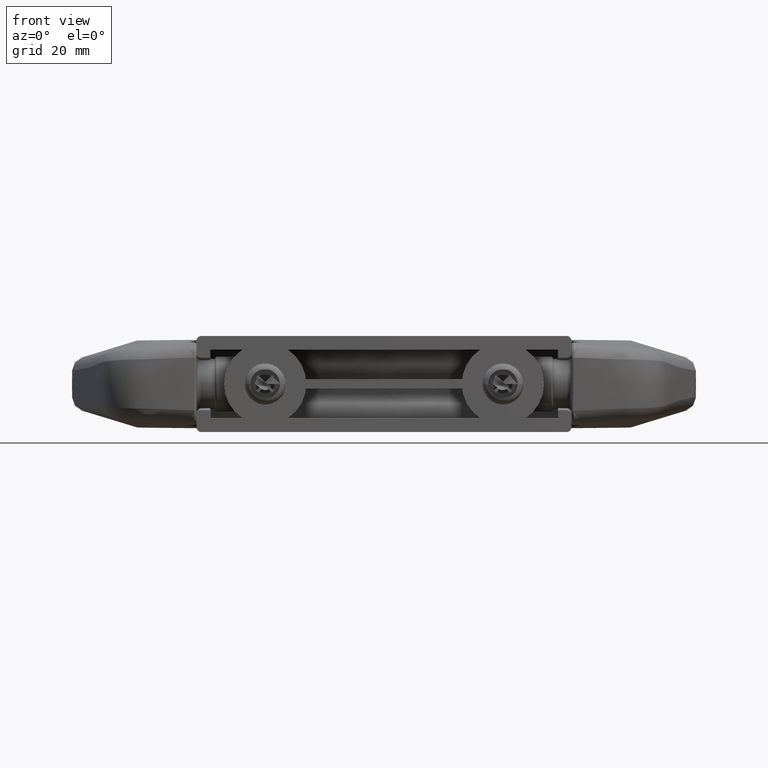
[diagram: clean part render]
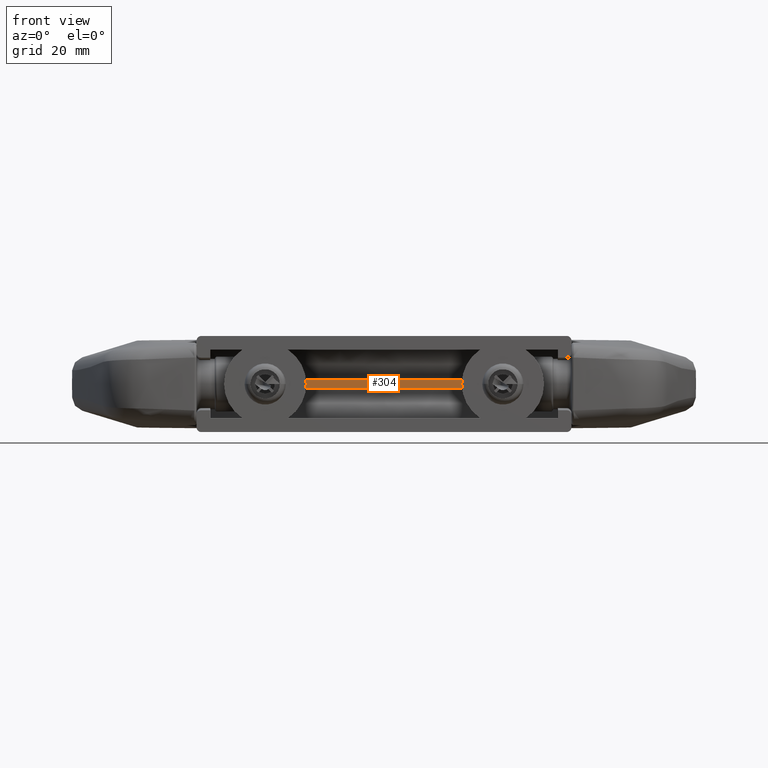
[diagram: same view with one face highlighted and labeled with its STEP entity id]
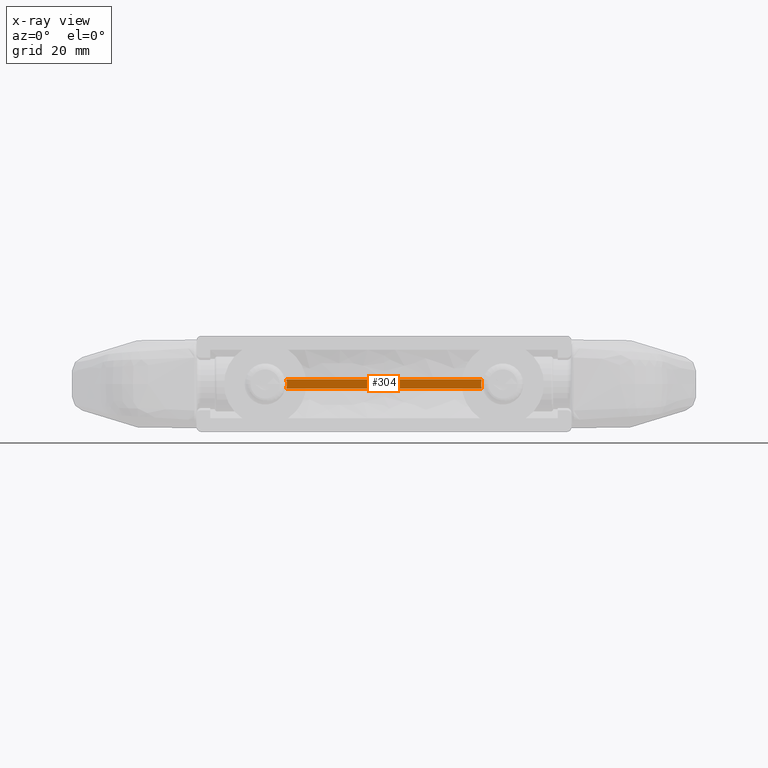
[diagram: x-ray of the same camera — body ghosted, the highlighted face saturated]
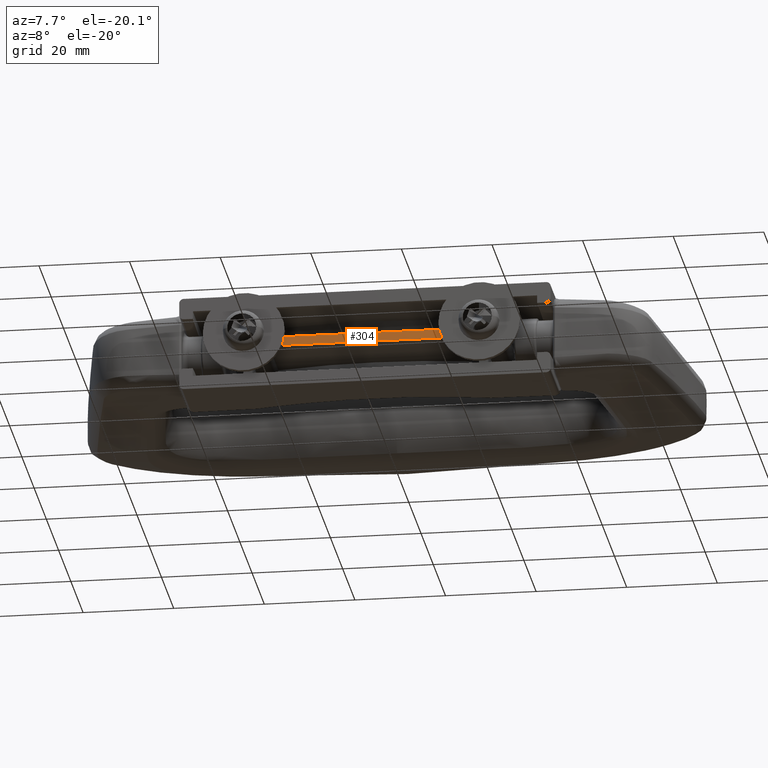
[diagram: same view with one face highlighted and labeled with its STEP entity id]
A machine part, front view. The second image highlights one B-rep face of the part: STEP entity #304.
The next image is the same camera in x-ray: the body ghosted, the highlighted face saturated — about 0% of this face is hidden behind the body in this view.
A second angle (auxiliary view) of the same face is appended — the face is thin or edge-on in the first view.
In plain terms, the highlighted planar face has unit normal (0, 1, 0).
Its self-contained STEP definition (entity closure, byte-faithful):
#157 = DIRECTION ( 'NONE',  ( 0.0000000000000000000, 1.000000000000000000, 0.0000000000000000000 ) ) ;
#196 = CARTESIAN_POINT ( 'NONE',  ( -21.35645609474832400, 0.9999999999763531400, -1.000000000000000000 ) ) ;
#304 = ADVANCED_FACE ( 'NONE', ( #6926 ), #6607, .F. ) ;
#537 = EDGE_LOOP ( 'NONE', ( #6561, #1940, #10078, #13278 ) ) ;
#548 = EDGE_CURVE ( 'NONE', #6629, #7211, #9346, .T. ) ;
#1190 = DIRECTION ( 'NONE',  ( 0.0000000000000000000, 0.0000000000000000000, 1.000000000000000000 ) ) ;
#1338 = DIRECTION ( 'NONE',  ( 1.000000000000000000, 0.0000000000000000000, 0.0000000000000000000 ) ) ;
#1451 = DIRECTION ( 'NONE',  ( 0.0000000000000000000, 1.000000000000000000, 0.0000000000000000000 ) ) ;
#1764 = AXIS2_PLACEMENT_3D ( 'NONE', #7365, #157, #8555 ) ;
#1940 = ORIENTED_EDGE ( 'NONE', *, *, #15373, .T. ) ;
#4360 = VERTEX_POINT ( 'NONE', #8277 ) ;
#6163 = VECTOR ( 'NONE', #8210, 1000.000000000000000 ) ;
#6561 = ORIENTED_EDGE ( 'NONE', *, *, #13160, .F. ) ;
#6607 = PLANE ( 'NONE',  #10414 ) ;
#6629 = VERTEX_POINT ( 'NONE', #196 ) ;
#6926 = FACE_OUTER_BOUND ( 'NONE', #537, .T. ) ;
#7211 = VERTEX_POINT ( 'NONE', #10949 ) ;
#7365 = CARTESIAN_POINT ( 'NONE',  ( 26.00000000000000000, 0.9999999999763531400, 0.0000000000000000000 ) ) ;
#8210 = DIRECTION ( 'NONE',  ( 1.000000000000000000, 0.0000000000000000000, 0.0000000000000000000 ) ) ;
#8277 = CARTESIAN_POINT ( 'NONE',  ( 21.35645609474832400, 0.9999999999763531400, 0.9999999999999995600 ) ) ;
#8365 = DIRECTION ( 'NONE',  ( 0.0000000000000000000, 1.000000000000000000, 0.0000000000000000000 ) ) ;
#8529 = CIRCLE ( 'NONE', #1764, 4.750000000000000900 ) ;
#8555 = DIRECTION ( 'NONE',  ( 0.0000000000000000000, 0.0000000000000000000, 1.000000000000000000 ) ) ;
#9197 = EDGE_CURVE ( 'NONE', #7211, #4360, #8529, .T. ) ;
#9204 = VERTEX_POINT ( 'NONE', #10918 ) ;
#9225 = CIRCLE ( 'NONE', #11755, 4.750000000000000900 ) ;
#9346 = LINE ( 'NONE', #12983, #6163 ) ;
#10078 = ORIENTED_EDGE ( 'NONE', *, *, #548, .T. ) ;
#10414 = AXIS2_PLACEMENT_3D ( 'NONE', #12706, #1451, #12404 ) ;
#10918 = CARTESIAN_POINT ( 'NONE',  ( -21.35645609474832400, 0.9999999999763531400, 0.9999999999999995600 ) ) ;
#10949 = CARTESIAN_POINT ( 'NONE',  ( 21.35645609474831400, 1.000000000000000900, -1.000000000000000000 ) ) ;
#11116 = VECTOR ( 'NONE', #1338, 1000.000000000000000 ) ;
#11485 = LINE ( 'NONE', #14534, #11116 ) ;
#11755 = AXIS2_PLACEMENT_3D ( 'NONE', #15489, #8365, #1190 ) ;
#12404 = DIRECTION ( 'NONE',  ( 0.0000000000000000000, -0.0000000000000000000, 1.000000000000000000 ) ) ;
#12706 = CARTESIAN_POINT ( 'NONE',  ( -26.00000000000000000, 1.000000000000000900, 1.000000000000000000 ) ) ;
#12983 = CARTESIAN_POINT ( 'NONE',  ( -26.00000000000000000, 1.000000000000000900, -1.000000000000000000 ) ) ;
#13160 = EDGE_CURVE ( 'NONE', #9204, #4360, #11485, .T. ) ;
#13278 = ORIENTED_EDGE ( 'NONE', *, *, #9197, .T. ) ;
#14534 = CARTESIAN_POINT ( 'NONE',  ( -26.00000000000000000, 1.000000000000000900, 1.000000000000000000 ) ) ;
#15373 = EDGE_CURVE ( 'NONE', #9204, #6629, #9225, .T. ) ;
#15489 = CARTESIAN_POINT ( 'NONE',  ( -26.00000000000000000, 0.9999999999763531400, 0.0000000000000000000 ) ) ;